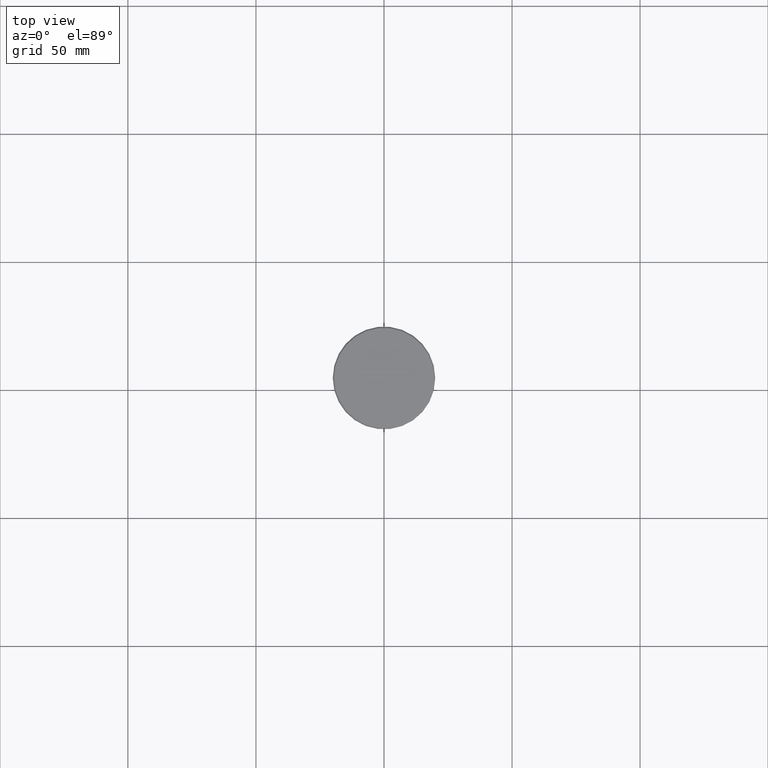
[diagram: clean part render]
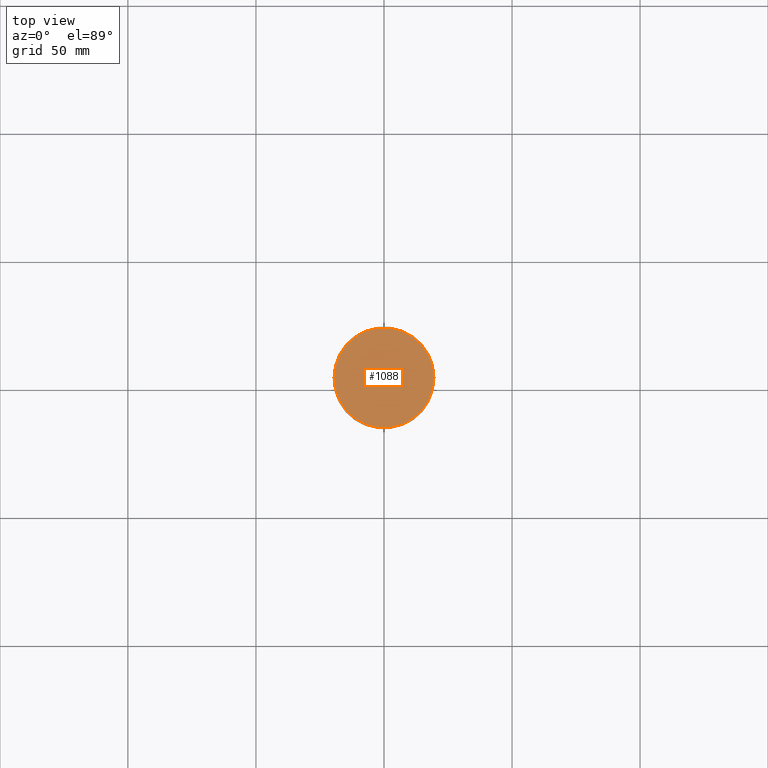
[diagram: same view with one face highlighted and labeled with its STEP entity id]
A machine part, top view. The second image highlights one B-rep face of the part: STEP entity #1088.
In plain terms, the highlighted planar face has unit normal (0, -0, 1).
Its self-contained STEP definition (entity closure, byte-faithful):
#65 = VERTEX_POINT ( 'NONE', #444 ) ;
#116 = DIRECTION ( 'NONE',  ( 1.000000000000000000, 0.000000000000000000, 0.000000000000000000 ) ) ;
#216 = EDGE_CURVE ( 'NONE', #1149, #65, #263, .T. ) ;
#257 = FACE_OUTER_BOUND ( 'NONE', #502, .T. ) ;
#263 = CIRCLE ( 'NONE', #374, 19.50000000000004619 ) ;
#306 = EDGE_CURVE ( 'NONE', #65, #1149, #439, .T. ) ;
#355 = PLANE ( 'NONE',  #1092 ) ;
#357 = ORIENTED_EDGE ( 'NONE', *, *, #306, .T. ) ;
#368 = CARTESIAN_POINT ( 'NONE',  ( 19.50000000000004619, 2.418677428316025487E-15, 0.000000000000000000 ) ) ;
#374 = AXIS2_PLACEMENT_3D ( 'NONE', #375, #477, #116 ) ;
#375 = CARTESIAN_POINT ( 'NONE',  ( 0.000000000000000000, 0.000000000000000000, 0.000000000000000000 ) ) ;
#439 = CIRCLE ( 'NONE', #681, 19.50000000000004619 ) ;
#444 = CARTESIAN_POINT ( 'NONE',  ( -19.50000000000004619, 0.000000000000000000, 0.000000000000000000 ) ) ;
#477 = DIRECTION ( 'NONE',  ( -0.000000000000000000, -0.000000000000000000, 1.000000000000000000 ) ) ;
#502 = EDGE_LOOP ( 'NONE', ( #357, #877 ) ) ;
#528 = CARTESIAN_POINT ( 'NONE',  ( 0.000000000000000000, 0.000000000000000000, 0.000000000000000000 ) ) ;
#604 = DIRECTION ( 'NONE',  ( 1.000000000000000000, 0.000000000000000000, 0.000000000000000000 ) ) ;
#681 = AXIS2_PLACEMENT_3D ( 'NONE', #966, #702, #604 ) ;
#702 = DIRECTION ( 'NONE',  ( -0.000000000000000000, -0.000000000000000000, 1.000000000000000000 ) ) ;
#726 = DIRECTION ( 'NONE',  ( 1.000000000000000000, 0.000000000000000000, 0.000000000000000000 ) ) ;
#729 = DIRECTION ( 'NONE',  ( 0.000000000000000000, -0.000000000000000000, 1.000000000000000000 ) ) ;
#877 = ORIENTED_EDGE ( 'NONE', *, *, #216, .T. ) ;
#966 = CARTESIAN_POINT ( 'NONE',  ( 0.000000000000000000, 0.000000000000000000, 0.000000000000000000 ) ) ;
#1088 = ADVANCED_FACE ( 'NONE', ( #257 ), #355, .T. ) ;
#1092 = AXIS2_PLACEMENT_3D ( 'NONE', #528, #729, #726 ) ;
#1149 = VERTEX_POINT ( 'NONE', #368 ) ;